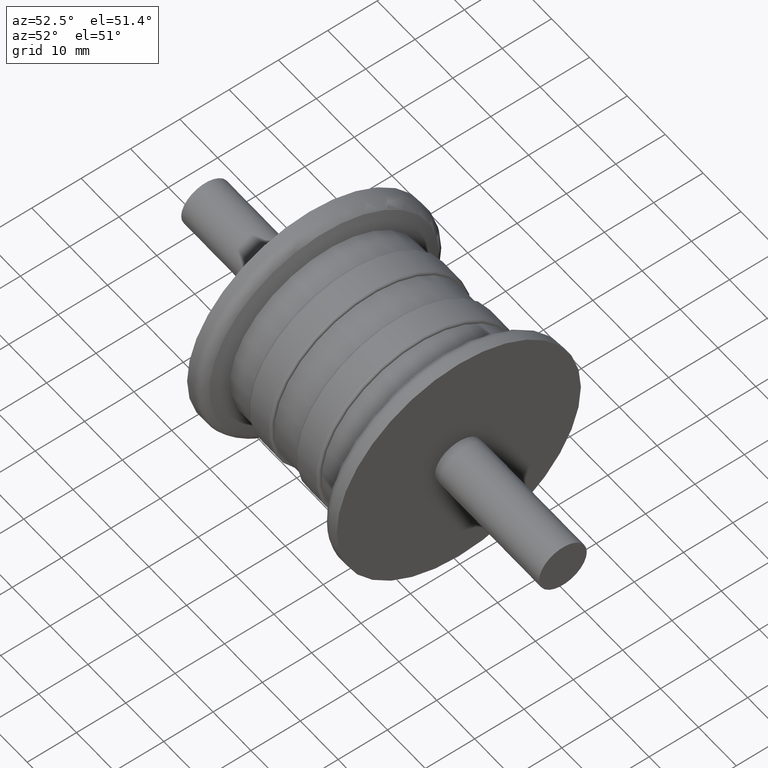
[diagram: clean part render]
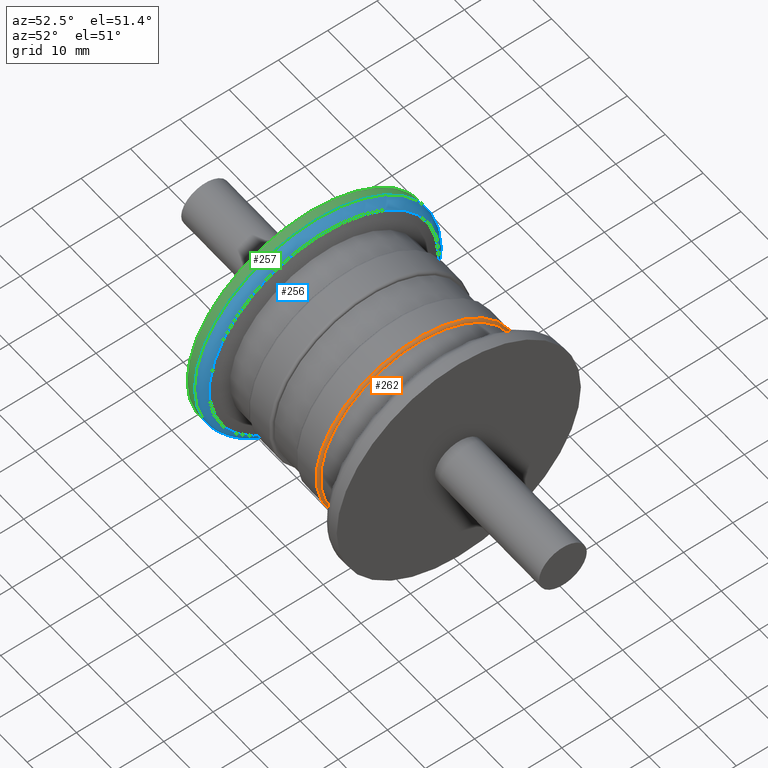
[diagram: same view with three faces highlighted in distinct colors, each labeled with its STEP entity id]
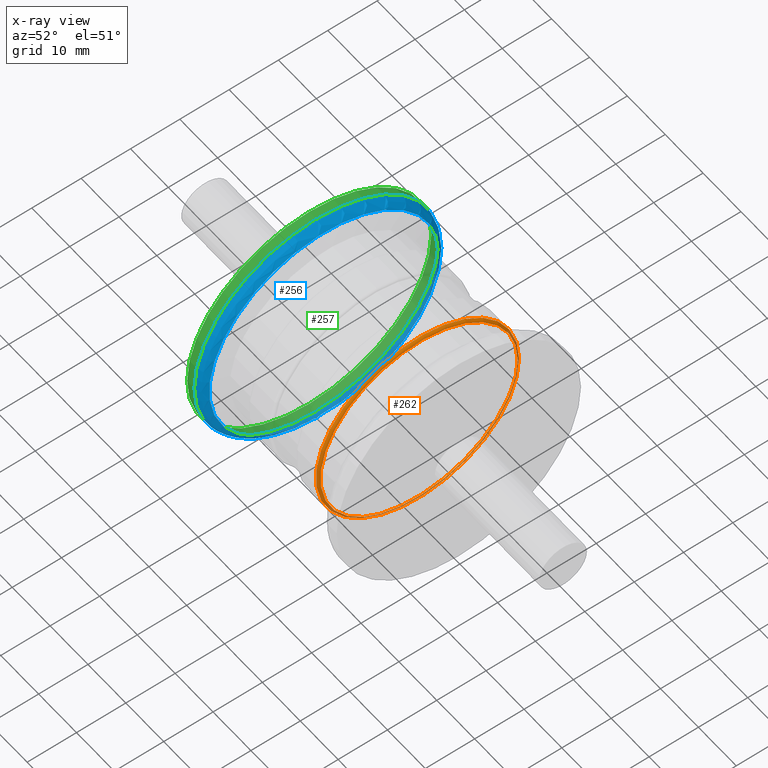
[diagram: x-ray of the same camera — body ghosted, the three highlighted faces saturated]
A machine part, auxiliary view with three faces highlighted in distinct colors.
The next image is the same camera in x-ray (body ghosted, the three faces saturated) — at least one of them is partly hidden behind the body in this view.
Their STEP definitions:

[orange] entity #262 — the highlighted toroidal blend (fillet) surface has major radius 20 mm and minor (blend) radius 0.5 mm.
#40=FACE_BOUND('',#95,.T.);
#63=FACE_OUTER_BOUND('',#94,.T.);
#94=EDGE_LOOP('',(#214));
#95=EDGE_LOOP('',(#215));
#138=CIRCLE('',#298,20.5);
#139=CIRCLE('',#299,20.);
#162=VERTEX_POINT('',#456);
#163=VERTEX_POINT('',#458);
#186=EDGE_CURVE('',#162,#162,#138,.T.);
#187=EDGE_CURVE('',#163,#163,#139,.T.);
#214=ORIENTED_EDGE('',*,*,#186,.T.);
#215=ORIENTED_EDGE('',*,*,#187,.T.);
#252=TOROIDAL_SURFACE('',#297,20.,0.5);
#262=ADVANCED_FACE('',(#63,#40),#252,.T.);
#297=AXIS2_PLACEMENT_3D('',#455,#362,#363);
#298=AXIS2_PLACEMENT_3D('',#457,#364,#365);
#299=AXIS2_PLACEMENT_3D('',#459,#366,#367);
#362=DIRECTION('center_axis',(1.,2.24855296126614E-16,0.));
#363=DIRECTION('ref_axis',(0.,0.,-1.));
#364=DIRECTION('center_axis',(1.,2.24855296126614E-16,0.));
#365=DIRECTION('ref_axis',(2.23398535442867E-16,-1.,1.83697019872103E-16));
#366=DIRECTION('center_axis',(-1.,-2.24855296126614E-16,0.));
#367=DIRECTION('ref_axis',(2.24855296126614E-16,-1.,1.83697019872103E-16));
#455=CARTESIAN_POINT('Origin',(8.75,1.96748384110787E-15,0.));
#456=CARTESIAN_POINT('',(8.75,20.5,-1.25526296912604E-15));
#457=CARTESIAN_POINT('Origin',(8.75,1.96748384110787E-15,0.));
#458=CARTESIAN_POINT('',(9.25,20.,-6.12323399573677E-15));
#459=CARTESIAN_POINT('Origin',(9.25,2.07991148917118E-15,0.));

[blue] entity #256 — the highlighted toroidal blend (fillet) surface has major radius 22.75 mm and minor (blend) radius 2 mm.
#34=FACE_BOUND('',#83,.T.);
#57=FACE_OUTER_BOUND('',#82,.T.);
#82=EDGE_LOOP('',(#202));
#83=EDGE_LOOP('',(#203));
#130=CIRCLE('',#284,24.75);
#131=CIRCLE('',#285,23.2350712500727);
#154=VERTEX_POINT('',#434);
#155=VERTEX_POINT('',#436);
#178=EDGE_CURVE('',#154,#154,#130,.T.);
#179=EDGE_CURVE('',#155,#155,#131,.T.);
#202=ORIENTED_EDGE('',*,*,#178,.T.);
#203=ORIENTED_EDGE('',*,*,#179,.T.);
#250=TOROIDAL_SURFACE('',#283,22.75,2.);
#256=ADVANCED_FACE('',(#57,#34),#250,.T.);
#283=AXIS2_PLACEMENT_3D('',#433,#334,#335);
#284=AXIS2_PLACEMENT_3D('',#435,#336,#337);
#285=AXIS2_PLACEMENT_3D('',#437,#338,#339);
#334=DIRECTION('center_axis',(1.,2.24855296126614E-16,0.));
#335=DIRECTION('ref_axis',(0.,0.,-1.));
#336=DIRECTION('center_axis',(1.,2.24855296126614E-16,0.));
#337=DIRECTION('ref_axis',(2.24287479722254E-16,-1.,1.83697019872103E-16));
#338=DIRECTION('center_axis',(-1.,-2.86693252456891E-16,3.53424506488075E-32));
#339=DIRECTION('ref_axis',(2.86693252456891E-16,-1.,3.06161699786838E-17));
#433=CARTESIAN_POINT('Origin',(-17.8115528128088,-4.00502198219895E-15,
0.));
#434=CARTESIAN_POINT('',(-17.8115528128088,24.75,-1.51550041394485E-15));
#435=CARTESIAN_POINT('Origin',(-17.8115528128088,-4.00502198219895E-15,
0.));
#436=CARTESIAN_POINT('',(-15.8712678125182,23.2350712500727,-7.11368890859054E-15));
#437=CARTESIAN_POINT('Origin',(-15.8712678125182,-4.44089209850063E-15,
-3.55684445429527E-15));

[green] entity #257 — the highlighted cylindrical surface (bore or boss wall) has radius 24.75 mm, axis along (1, 0, 0).
#25=CYLINDRICAL_SURFACE('',#286,24.75);
#35=FACE_BOUND('',#85,.T.);
#58=FACE_OUTER_BOUND('',#84,.T.);
#84=EDGE_LOOP('',(#204));
#85=EDGE_LOOP('',(#205));
#130=CIRCLE('',#284,24.75);
#132=CIRCLE('',#287,24.75);
#154=VERTEX_POINT('',#434);
#156=VERTEX_POINT('',#439);
#178=EDGE_CURVE('',#154,#154,#130,.T.);
#180=EDGE_CURVE('',#156,#156,#132,.T.);
#204=ORIENTED_EDGE('',*,*,#180,.T.);
#205=ORIENTED_EDGE('',*,*,#178,.F.);
#257=ADVANCED_FACE('',(#58,#35),#25,.T.);
#284=AXIS2_PLACEMENT_3D('',#435,#336,#337);
#286=AXIS2_PLACEMENT_3D('',#438,#340,#341);
#287=AXIS2_PLACEMENT_3D('',#440,#342,#343);
#336=DIRECTION('center_axis',(1.,2.24855296126614E-16,0.));
#337=DIRECTION('ref_axis',(2.24287479722254E-16,-1.,1.83697019872103E-16));
#340=DIRECTION('center_axis',(1.,2.24855296126614E-16,0.));
#341=DIRECTION('ref_axis',(-2.24855296126614E-16,1.,0.));
#342=DIRECTION('center_axis',(1.,2.24855296126614E-16,0.));
#343=DIRECTION('ref_axis',(0.,0.,-1.));
#434=CARTESIAN_POINT('',(-17.8115528128088,24.75,-1.51550041394485E-15));
#435=CARTESIAN_POINT('Origin',(-17.8115528128088,-4.00502198219895E-15,
0.));
#438=CARTESIAN_POINT('Origin',(-18.,-4.04739533027905E-15,0.));
#439=CARTESIAN_POINT('',(-19.75,24.75,0.));
#440=CARTESIAN_POINT('Origin',(-19.75,-4.44089209850062E-15,0.));